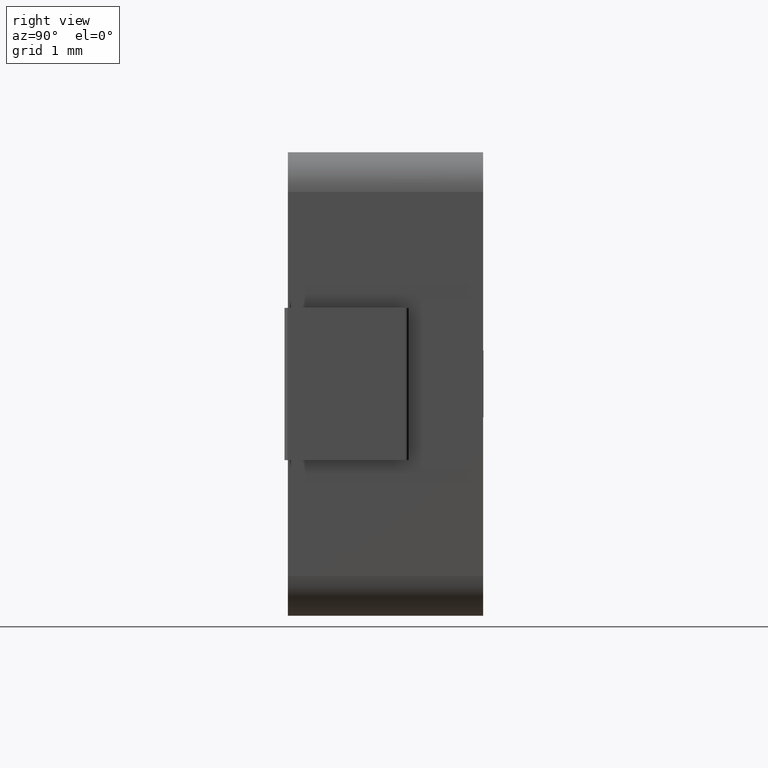
[diagram: clean part render]
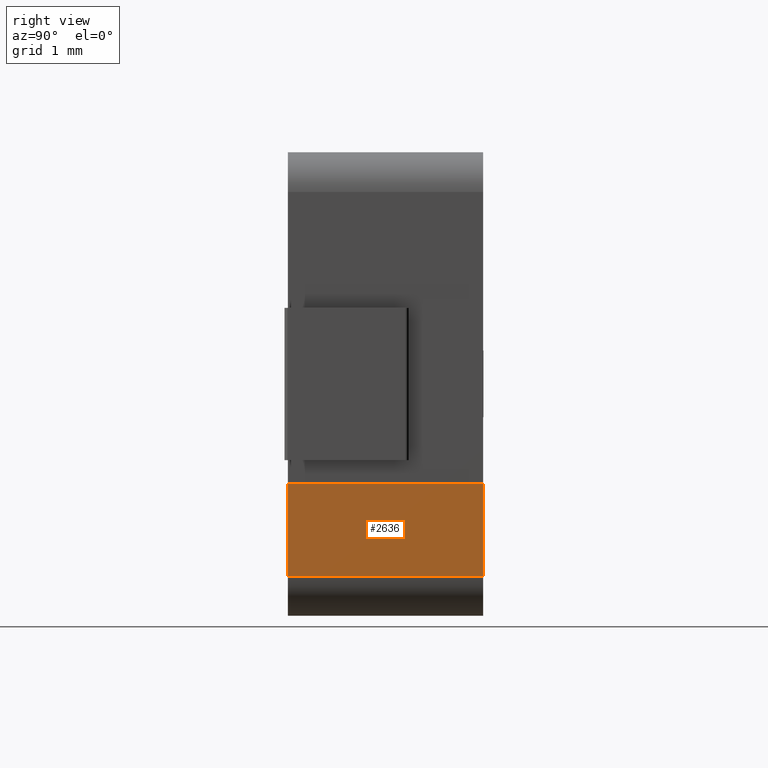
[diagram: same view with one face highlighted and labeled with its STEP entity id]
A machine part, right view. The second image highlights one B-rep face of the part: STEP entity #2636.
In plain terms, the highlighted planar face has unit normal (-1, 0, 0).
Its self-contained STEP definition (entity closure, byte-faithful):
#41 = EDGE_CURVE ( 'NONE', #480, #2183, #1070, .T. ) ;
#56 = DIRECTION ( 'NONE',  ( 0.0000000000000000000, 0.0000000000000000000, -1.000000000000000000 ) ) ;
#139 = LINE ( 'NONE', #903, #1871 ) ;
#204 = ORIENTED_EDGE ( 'NONE', *, *, #1004, .F. ) ;
#215 = CARTESIAN_POINT ( 'NONE',  ( 7.599999999999996100, 0.0000000000000000000, -4.999999999999999100 ) ) ;
#365 = VERTEX_POINT ( 'NONE', #3070 ) ;
#366 = CARTESIAN_POINT ( 'NONE',  ( 7.599999999999999600, 2.950000000000000200, -6.400100000000001000 ) ) ;
#441 = AXIS2_PLACEMENT_3D ( 'NONE', #3767, #2144, #2822 ) ;
#480 = VERTEX_POINT ( 'NONE', #4061 ) ;
#594 = ORIENTED_EDGE ( 'NONE', *, *, #3796, .T. ) ;
#678 = ORIENTED_EDGE ( 'NONE', *, *, #791, .T. ) ;
#763 = VECTOR ( 'NONE', #3954, 1000.000000000000000 ) ;
#791 = EDGE_CURVE ( 'NONE', #365, #3366, #2833, .T. ) ;
#903 = CARTESIAN_POINT ( 'NONE',  ( 7.599999999999999600, 2.950000000000000200, 0.0000000000000000000 ) ) ;
#1004 = EDGE_CURVE ( 'NONE', #480, #3366, #139, .T. ) ;
#1070 = LINE ( 'NONE', #2079, #763 ) ;
#1132 = CARTESIAN_POINT ( 'NONE',  ( 7.599999999999999600, 2.950000000000000200, -6.400100000000001000 ) ) ;
#1288 = ORIENTED_EDGE ( 'NONE', *, *, #41, .T. ) ;
#1871 = VECTOR ( 'NONE', #3802, 1000.000000000000000 ) ;
#2061 = LINE ( 'NONE', #2607, #4114 ) ;
#2079 = CARTESIAN_POINT ( 'NONE',  ( 7.599999999999996100, 0.05000000000000000300, -4.999999999999999100 ) ) ;
#2144 = DIRECTION ( 'NONE',  ( -1.000000000000000000, 0.0000000000000000000, 0.0000000000000000000 ) ) ;
#2183 = VERTEX_POINT ( 'NONE', #215 ) ;
#2269 = VECTOR ( 'NONE', #3933, 1000.000000000000000 ) ;
#2488 = PLANE ( 'NONE',  #441 ) ;
#2607 = CARTESIAN_POINT ( 'NONE',  ( 7.599999999999999600, 0.0000000000000000000, 0.0000000000000000000 ) ) ;
#2636 = ADVANCED_FACE ( 'NONE', ( #3789 ), #2488, .F. ) ;
#2822 = DIRECTION ( 'NONE',  ( 0.0000000000000000000, 0.0000000000000000000, 1.000000000000000000 ) ) ;
#2827 = EDGE_LOOP ( 'NONE', ( #204, #1288, #594, #678 ) ) ;
#2833 = LINE ( 'NONE', #1132, #2269 ) ;
#3070 = CARTESIAN_POINT ( 'NONE',  ( 7.599999999999999600, 0.0000000000000000000, -6.400100000000001000 ) ) ;
#3366 = VERTEX_POINT ( 'NONE', #366 ) ;
#3767 = CARTESIAN_POINT ( 'NONE',  ( 7.599999999999999600, 2.950000000000000200, 0.0000000000000000000 ) ) ;
#3789 = FACE_OUTER_BOUND ( 'NONE', #2827, .T. ) ;
#3796 = EDGE_CURVE ( 'NONE', #2183, #365, #2061, .T. ) ;
#3802 = DIRECTION ( 'NONE',  ( 0.0000000000000000000, 0.0000000000000000000, -1.000000000000000000 ) ) ;
#3933 = DIRECTION ( 'NONE',  ( -0.0000000000000000000, 1.000000000000000000, -0.0000000000000000000 ) ) ;
#3954 = DIRECTION ( 'NONE',  ( -0.0000000000000000000, -1.000000000000000000, -0.0000000000000000000 ) ) ;
#4061 = CARTESIAN_POINT ( 'NONE',  ( 7.599999999999996100, 2.950000000000000200, -4.999999999999999100 ) ) ;
#4114 = VECTOR ( 'NONE', #56, 1000.000000000000000 ) ;